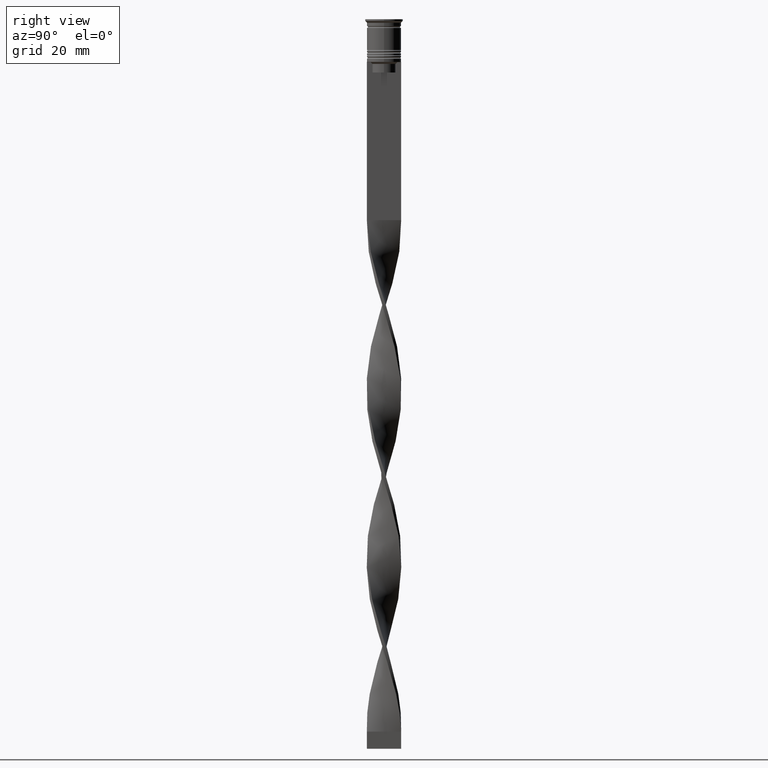
[diagram: clean part render]
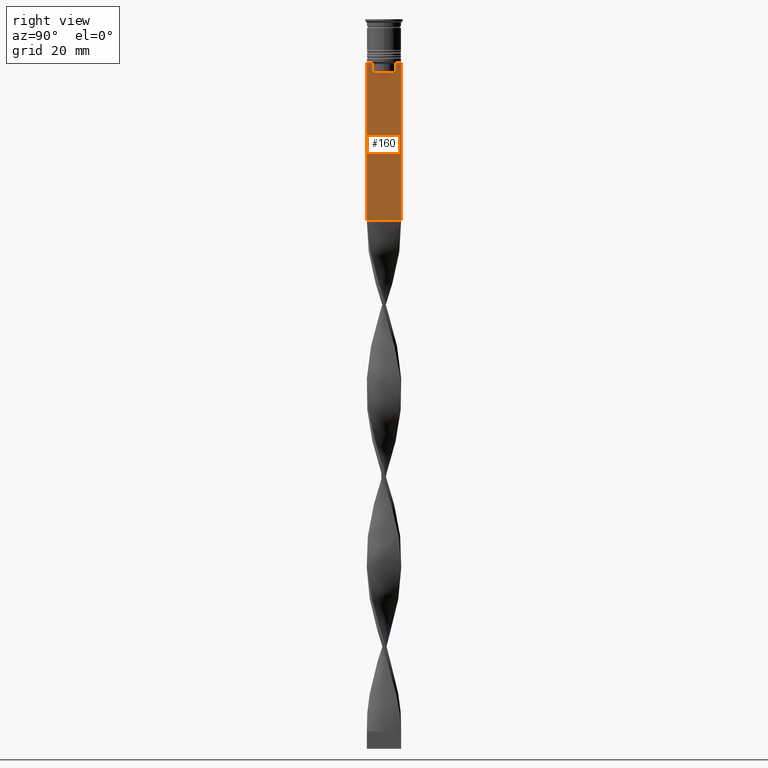
[diagram: same view with one face highlighted and labeled with its STEP entity id]
A machine part, right view. The second image highlights one B-rep face of the part: STEP entity #160.
In plain terms, the highlighted planar face has unit normal (-1, 0, 0).
Its self-contained STEP definition (entity closure, byte-faithful):
#5 = CARTESIAN_POINT ( 'NONE',  ( 0.5000000000000000000, -4.999999999999999112, -58.50000000000000000 ) ) ;
#13 = EDGE_CURVE ( 'NONE', #99, #3169, #392, .T. ) ;
#62 = LINE ( 'NONE', #1284, #975 ) ;
#83 = CARTESIAN_POINT ( 'NONE',  ( 0.5000000000000000000, -3.867815921162742754, -12.50000000000000000 ) ) ;
#99 = VERTEX_POINT ( 'NONE', #197 ) ;
#139 = CARTESIAN_POINT ( 'NONE',  ( 0.5000000000000000000, -4.999999999999999112, -58.50000000000000000 ) ) ;
#160 = ADVANCED_FACE ( 'NONE', ( #463 ), #2072, .F. ) ;
#197 = CARTESIAN_POINT ( 'NONE',  ( 0.5000000000000000000, -3.363034344160045208, -13.00000000000000178 ) ) ;
#222 = VERTEX_POINT ( 'NONE', #1747 ) ;
#226 = ORIENTED_EDGE ( 'NONE', *, *, #2948, .T. ) ;
#275 = DIRECTION ( 'NONE',  ( 0.000000000000000000, -1.000000000000000000, 0.000000000000000000 ) ) ;
#281 = EDGE_CURVE ( 'NONE', #1224, #304, #557, .T. ) ;
#284 = LINE ( 'NONE', #979, #2633 ) ;
#302 = CARTESIAN_POINT ( 'NONE',  ( 0.5000000000000000000, -3.363034344160045208, 0.000000000000000000 ) ) ;
#304 = VERTEX_POINT ( 'NONE', #2317 ) ;
#354 = EDGE_CURVE ( 'NONE', #2492, #1734, #1637, .T. ) ;
#387 = VECTOR ( 'NONE', #651, 1000.000000000000000 ) ;
#392 = B_SPLINE_CURVE_WITH_KNOTS ( 'NONE', 3,
 ( #1326, #743, #3498, #2215 ),
 .UNSPECIFIED., .F., .F.,
 ( 4, 4 ),
 ( 0.01632394437298965648, 0.01703543518243618576 ),
 .UNSPECIFIED. ) ;
#398 = CARTESIAN_POINT ( 'NONE',  ( 0.5000000000000000000, -4.999999999999999112, -12.50000000000000000 ) ) ;
#440 = VERTEX_POINT ( 'NONE', #2726 ) ;
#463 = FACE_OUTER_BOUND ( 'NONE', #3622, .T. ) ;
#510 = CARTESIAN_POINT ( 'NONE',  ( 0.5000000000000000000, 3.531412678228260216, -12.83345231756357840 ) ) ;
#554 = CARTESIAN_POINT ( 'NONE',  ( 0.5000000000000000000, -4.999999999999999112, -12.50000000000000000 ) ) ;
#557 = LINE ( 'NONE', #2146, #2420 ) ;
#604 = LINE ( 'NONE', #302, #387 ) ;
#651 = DIRECTION ( 'NONE',  ( -0.000000000000000000, -0.000000000000000000, 1.000000000000000000 ) ) ;
#662 = CARTESIAN_POINT ( 'NONE',  ( 0.5000000000000000000, -4.999999999999999112, -2.450124378879110054 ) ) ;
#672 = ORIENTED_EDGE ( 'NONE', *, *, #13, .T. ) ;
#743 = CARTESIAN_POINT ( 'NONE',  ( 0.5000000000000000000, -3.531412985305424801, -12.83345201382502765 ) ) ;
#848 = EDGE_CURVE ( 'NONE', #440, #222, #1543, .T. ) ;
#876 = CARTESIAN_POINT ( 'NONE',  ( 0.5000000000000000000, 5.000000000000000888, -2.450124378879110054 ) ) ;
#887 = VERTEX_POINT ( 'NONE', #3100 ) ;
#975 = VECTOR ( 'NONE', #1366, 1000.000000000000000 ) ;
#979 = CARTESIAN_POINT ( 'NONE',  ( 0.5000000000000000000, 3.399999999999998135, -15.50000000000000000 ) ) ;
#997 = EDGE_CURVE ( 'NONE', #2938, #2492, #2794, .T. ) ;
#1060 = CARTESIAN_POINT ( 'NONE',  ( 0.5000000000000000000, -4.874423042781575788, -12.50000000000000000 ) ) ;
#1096 = EDGE_CURVE ( 'NONE', #440, #2938, #1581, .T. ) ;
#1106 = DIRECTION ( 'NONE',  ( -1.000000000000000000, 0.000000000000000000, 0.000000000000000000 ) ) ;
#1184 = LINE ( 'NONE', #2018, #2307 ) ;
#1224 = VERTEX_POINT ( 'NONE', #1060 ) ;
#1284 = CARTESIAN_POINT ( 'NONE',  ( 0.5000000000000000000, -4.999999999999999112, -12.50000000000000000 ) ) ;
#1326 = CARTESIAN_POINT ( 'NONE',  ( 0.5000000000000000000, -3.363034344160045208, -13.00000000000000178 ) ) ;
#1338 = VECTOR ( 'NONE', #3687, 1000.000000000000000 ) ;
#1366 = DIRECTION ( 'NONE',  ( 0.000000000000000000, -1.000000000000000000, 0.000000000000000000 ) ) ;
#1411 = LINE ( 'NONE', #5, #1989 ) ;
#1543 = LINE ( 'NONE', #876, #1338 ) ;
#1581 = LINE ( 'NONE', #398, #2051 ) ;
#1637 = B_SPLINE_CURVE_WITH_KNOTS ( 'NONE', 3,
 ( #1800, #3036, #510, #3357 ),
 .UNSPECIFIED., .F., .F.,
 ( 4, 4 ),
 ( 0.006644825462451552783, 0.007355321358912435097 ),
 .UNSPECIFIED. ) ;
#1693 = ORIENTED_EDGE ( 'NONE', *, *, #1936, .T. ) ;
#1704 = ORIENTED_EDGE ( 'NONE', *, *, #997, .T. ) ;
#1709 = DIRECTION ( 'NONE',  ( 0.000000000000000000, 0.000000000000000000, -1.000000000000000000 ) ) ;
#1734 = VERTEX_POINT ( 'NONE', #2273 ) ;
#1747 = CARTESIAN_POINT ( 'NONE',  ( 0.5000000000000000000, 5.000000000000000888, -58.50000000000000000 ) ) ;
#1751 = ORIENTED_EDGE ( 'NONE', *, *, #848, .F. ) ;
#1800 = CARTESIAN_POINT ( 'NONE',  ( 0.5000000000000000000, 3.867815921162742754, -12.50000000000000000 ) ) ;
#1866 = VECTOR ( 'NONE', #1894, 1000.000000000000000 ) ;
#1894 = DIRECTION ( 'NONE',  ( 0.000000000000000000, 0.000000000000000000, -1.000000000000000000 ) ) ;
#1936 = EDGE_CURVE ( 'NONE', #1734, #887, #1184, .T. ) ;
#1989 = VECTOR ( 'NONE', #2735, 1000.000000000000000 ) ;
#2018 = CARTESIAN_POINT ( 'NONE',  ( 0.5000000000000000000, 3.363034344160045208, 0.000000000000000000 ) ) ;
#2051 = VECTOR ( 'NONE', #3201, 1000.000000000000000 ) ;
#2072 = PLANE ( 'NONE',  #3849 ) ;
#2136 = DIRECTION ( 'NONE',  ( 0.000000000000000000, -1.000000000000000000, 0.000000000000000000 ) ) ;
#2146 = CARTESIAN_POINT ( 'NONE',  ( 0.5000000000000000000, -4.999999999999999112, -12.50000000000000000 ) ) ;
#2215 = CARTESIAN_POINT ( 'NONE',  ( 0.5000000000000000000, -3.867815921162742754, -12.50000000000000000 ) ) ;
#2223 = ORIENTED_EDGE ( 'NONE', *, *, #354, .T. ) ;
#2273 = CARTESIAN_POINT ( 'NONE',  ( 0.5000000000000000000, 3.363034344160045208, -13.00000000000000178 ) ) ;
#2307 = VECTOR ( 'NONE', #1709, 1000.000000000000000 ) ;
#2317 = CARTESIAN_POINT ( 'NONE',  ( 0.5000000000000000000, -4.999999999999999112, -12.50000000000000000 ) ) ;
#2420 = VECTOR ( 'NONE', #275, 1000.000000000000000 ) ;
#2481 = ORIENTED_EDGE ( 'NONE', *, *, #3977, .T. ) ;
#2492 = VERTEX_POINT ( 'NONE', #2663 ) ;
#2633 = VECTOR ( 'NONE', #2136, 1000.000000000000000 ) ;
#2656 = CARTESIAN_POINT ( 'NONE',  ( 0.5000000000000000000, -4.999999999999999112, -2.450124378879110054 ) ) ;
#2663 = CARTESIAN_POINT ( 'NONE',  ( 0.5000000000000000000, 3.867815921162742754, -12.50000000000000000 ) ) ;
#2703 = ORIENTED_EDGE ( 'NONE', *, *, #3392, .T. ) ;
#2726 = CARTESIAN_POINT ( 'NONE',  ( 0.5000000000000000000, 5.000000000000000888, -12.50000000000000000 ) ) ;
#2735 = DIRECTION ( 'NONE',  ( 0.000000000000000000, 1.000000000000000000, 0.000000000000000000 ) ) ;
#2794 = LINE ( 'NONE', #554, #3018 ) ;
#2938 = VERTEX_POINT ( 'NONE', #3257 ) ;
#2948 = EDGE_CURVE ( 'NONE', #3329, #222, #1411, .T. ) ;
#3018 = VECTOR ( 'NONE', #3431, 1000.000000000000000 ) ;
#3036 = CARTESIAN_POINT ( 'NONE',  ( 0.5000000000000000000, 3.699657965831574913, -12.66677026074361301 ) ) ;
#3100 = CARTESIAN_POINT ( 'NONE',  ( 0.5000000000000000000, 3.363034344160045652, -15.50000000000000000 ) ) ;
#3169 = VERTEX_POINT ( 'NONE', #83 ) ;
#3201 = DIRECTION ( 'NONE',  ( 0.000000000000000000, -1.000000000000000000, 0.000000000000000000 ) ) ;
#3242 = ORIENTED_EDGE ( 'NONE', *, *, #3292, .T. ) ;
#3257 = CARTESIAN_POINT ( 'NONE',  ( 0.5000000000000000000, 4.874423042781575788, -12.50000000000000000 ) ) ;
#3292 = EDGE_CURVE ( 'NONE', #3169, #1224, #62, .T. ) ;
#3329 = VERTEX_POINT ( 'NONE', #139 ) ;
#3354 = VERTEX_POINT ( 'NONE', #3844 ) ;
#3357 = CARTESIAN_POINT ( 'NONE',  ( 0.5000000000000000000, 3.363034344160045208, -13.00000000000000178 ) ) ;
#3375 = ORIENTED_EDGE ( 'NONE', *, *, #281, .T. ) ;
#3392 = EDGE_CURVE ( 'NONE', #304, #3329, #3725, .T. ) ;
#3431 = DIRECTION ( 'NONE',  ( 0.000000000000000000, -1.000000000000000000, 0.000000000000000000 ) ) ;
#3498 = CARTESIAN_POINT ( 'NONE',  ( 0.5000000000000000000, -3.699658232838647365, -12.66676999593996555 ) ) ;
#3576 = DIRECTION ( 'NONE',  ( 0.000000000000000000, 0.000000000000000000, 1.000000000000000000 ) ) ;
#3622 = EDGE_LOOP ( 'NONE', ( #1704, #2223, #1693, #3762, #2481, #672, #3242, #3375, #2703, #226, #1751, #3818 ) ) ;
#3687 = DIRECTION ( 'NONE',  ( 0.000000000000000000, 0.000000000000000000, -1.000000000000000000 ) ) ;
#3725 = LINE ( 'NONE', #662, #1866 ) ;
#3762 = ORIENTED_EDGE ( 'NONE', *, *, #3983, .T. ) ;
#3818 = ORIENTED_EDGE ( 'NONE', *, *, #1096, .T. ) ;
#3844 = CARTESIAN_POINT ( 'NONE',  ( 0.5000000000000000000, -3.363034344160045652, -15.50000000000000000 ) ) ;
#3849 = AXIS2_PLACEMENT_3D ( 'NONE', #2656, #1106, #3576 ) ;
#3977 = EDGE_CURVE ( 'NONE', #3354, #99, #604, .T. ) ;
#3983 = EDGE_CURVE ( 'NONE', #887, #3354, #284, .T. ) ;